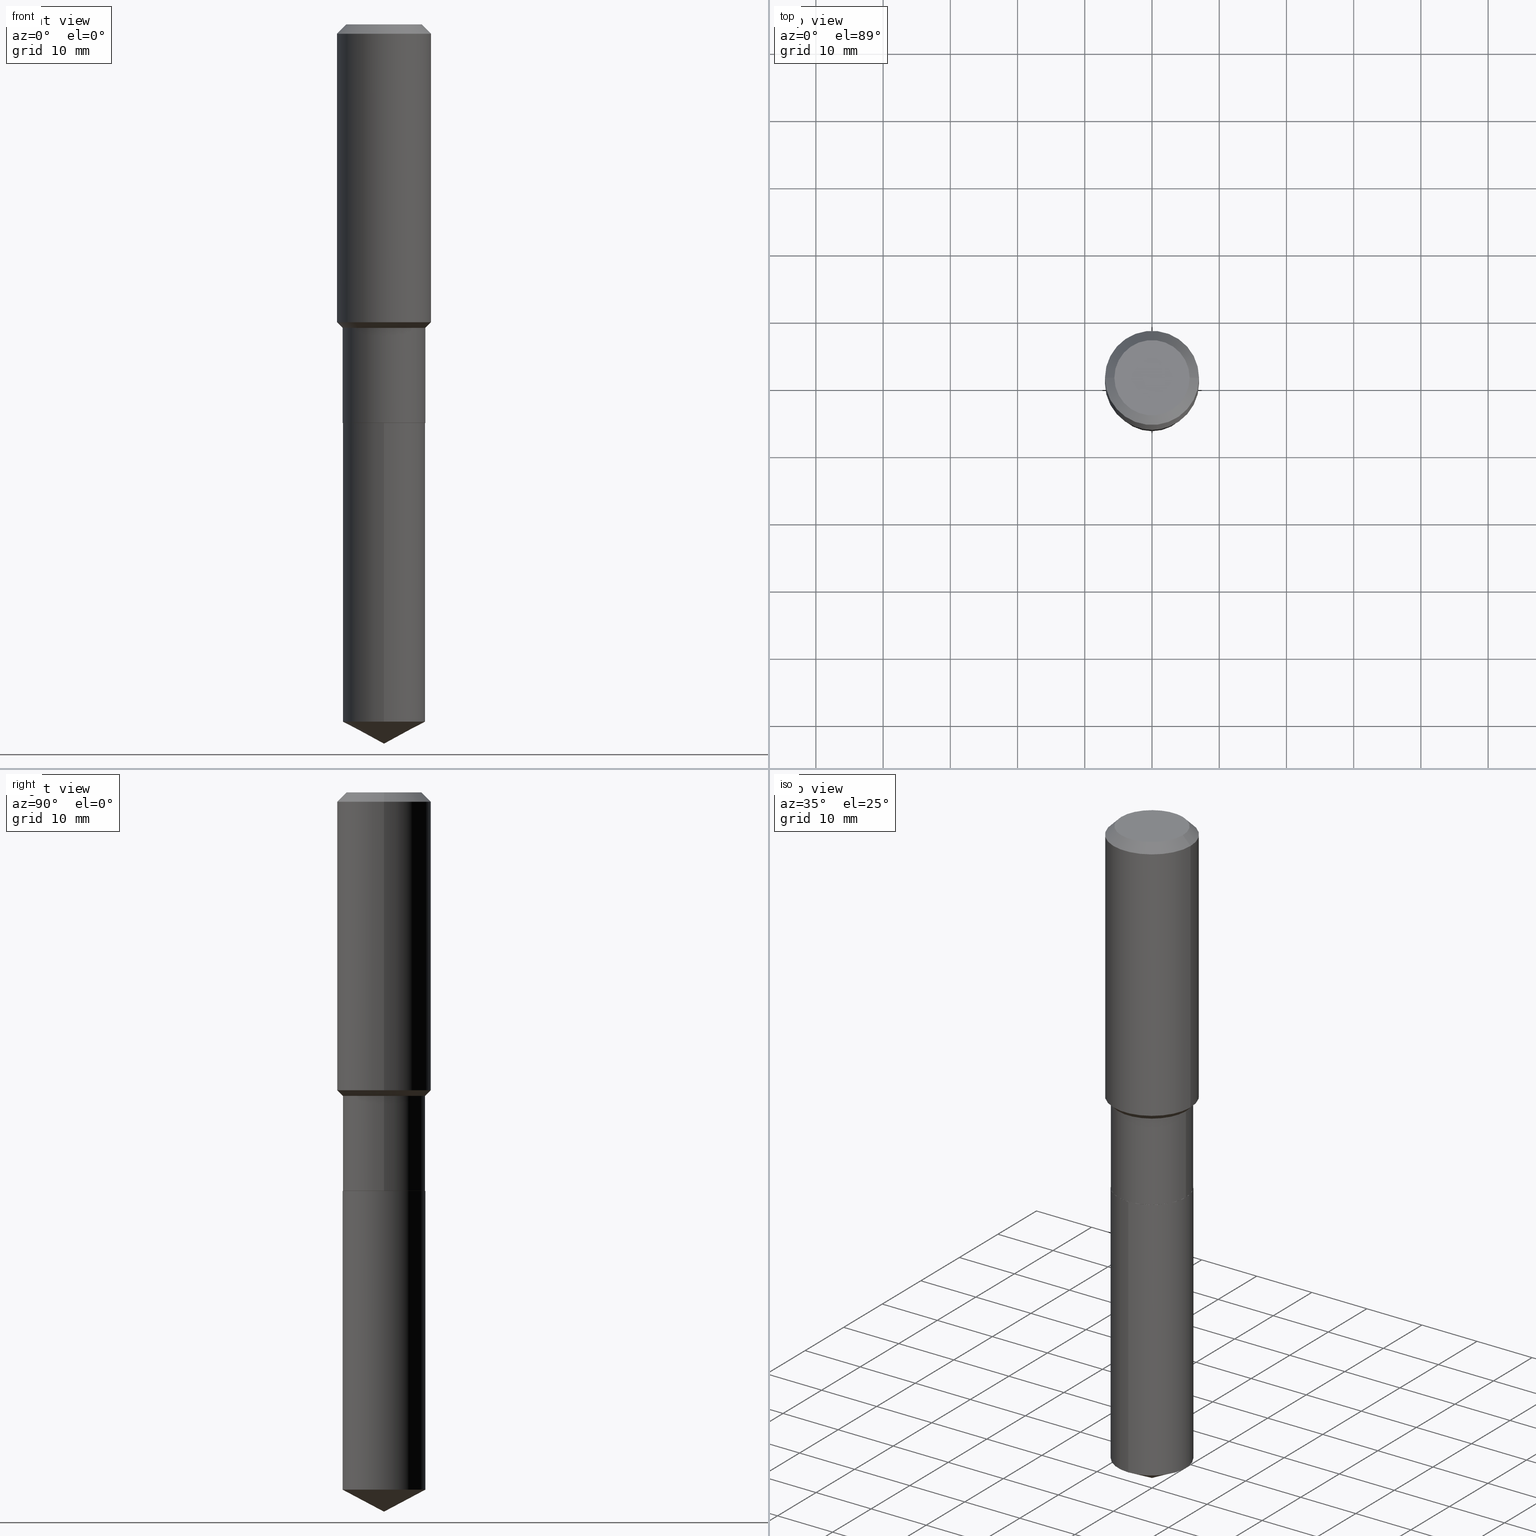
[diagram: canonical four-view strip — front | top / right | iso, engineering-drawing reading convention]
A machine part, canonical four-view strip (front | top / right | iso — engineering-drawing reading convention). The complete STEP part file that produces these views, byte-faithful:
ISO-10303-21;
HEADER;
FILE_DESCRIPTION (( 'STEP AP203' ),
    '1' );
FILE_NAME ('54727.STEP',
    '2024-04-24T15:38:02',
    ( '' ),
    ( '' ),
    'SwSTEP 2.0',
    'SolidWorks 2023',
    '' );
FILE_SCHEMA (( 'CONFIG_CONTROL_DESIGN' ));
ENDSEC;

DATA;
#1 = CARTESIAN_POINT ( 'NONE',  ( -1.691273560535556602E-15, -0.2422000000000081865, -2.334799999999999542 ) ) ;
#2 = EDGE_CURVE ( 'NONE', #485, #347, #308, .T. ) ;
#3 = DIRECTION ( 'NONE',  ( 1.000000000000000000, -6.982962677686269077E-15, 0.000000000000000000 ) ) ;
#4 = EDGE_LOOP ( 'NONE', ( #404, #425, #243, #324 ) ) ;
#5 = ORIENTED_EDGE ( 'NONE', *, *, #314, .F. ) ;
#6 = DIRECTION ( 'NONE',  ( 1.000000000000000000, -6.982962677686265922E-15, 0.000000000000000000 ) ) ;
#7 = CARTESIAN_POINT ( 'NONE',  ( 5.709680568681056788E-29, -8.151910629930976498E-15, -2.334799999999999986 ) ) ;
#8 = ADVANCED_FACE ( 'NONE', ( #30 ), #33, .T. ) ;
#9 = DIRECTION ( 'NONE',  ( 6.273719981627759766E-15, 0.8829475928589287648, 0.4694715627858873086 ) ) ;
#10 = CARTESIAN_POINT ( 'NONE',  ( 4.265631238628734583E-29, -6.090190899344100319E-15, -1.744300000000000406 ) ) ;
#11 = CARTESIAN_POINT ( 'NONE',  ( 0.000000000000000000, 0.000000000000000000, 0.000000000000000000 ) ) ;
#12 = AXIS2_PLACEMENT_3D ( 'NONE', #303, #271, #427 ) ;
#13 = FACE_OUTER_BOUND ( 'NONE', #249, .T. ) ;
#14 = COORDINATED_UNIVERSAL_TIME_OFFSET ( 5, 0, .BEHIND. ) ;
#15 = CARTESIAN_POINT ( 'NONE',  ( 1.347942405969256063E-30, -1.924504513970354330E-16, -0.05512000000000035621 ) ) ;
#16 = UNCERTAINTY_MEASURE_WITH_UNIT (LENGTH_MEASURE( 1.000000000000000082E-05 ), #152, 'distance_accuracy_value', 'NONE');
#17 = AXIS2_PLACEMENT_3D ( 'NONE', #297, #461, #235 ) ;
#18 = EDGE_CURVE ( 'NONE', #147, #366, #406, .T. ) ;
#19 = DIRECTION ( 'NONE',  ( 1.000000000000000000, 0.000000000000000000, 0.000000000000000000 ) ) ;
#20 = CARTESIAN_POINT ( 'NONE',  ( 5.709680568681056788E-29, -8.151910629930976498E-15, -2.334799999999999986 ) ) ;
#21 = ORIENTED_EDGE ( 'NONE', *, *, #462, .F. ) ;
#22 = PERSON_AND_ORGANIZATION_ROLE ( 'creator' ) ;
#23 = VERTEX_POINT ( 'NONE', #334 ) ;
#24 = CARTESIAN_POINT ( 'NONE',  ( -0.2756000000000001227, 1.958255779754836984E-15, -1.355658510874252567E-29 ) ) ;
#25 = CARTESIAN_POINT ( 'NONE',  ( 0.2421999999999999431, -7.898079936597074890E-15, -1.777700000000000502 ) ) ;
#26 = AXIS2_PLACEMENT_3D ( 'NONE', #466, #124, #273 ) ;
#27 = AXIS2_PLACEMENT_3D ( 'NONE', #349, #225, #464 ) ;
#28 = DIRECTION ( 'NONE',  ( -1.000000000000000000, 6.982962677686269077E-15, 0.000000000000000000 ) ) ;
#29 = APPROVAL ( #436, 'UNSPECIFIED' ) ;
#30 = FACE_OUTER_BOUND ( 'NONE', #91, .T. ) ;
#31 = DIRECTION ( 'NONE',  ( -2.445495124633309796E-29, 3.491443649327408440E-15, 1.000000000000000000 ) ) ;
#32 =( GEOMETRIC_REPRESENTATION_CONTEXT ( 3 ) GLOBAL_UNCERTAINTY_ASSIGNED_CONTEXT ( ( #16 ) ) GLOBAL_UNIT_ASSIGNED_CONTEXT ( ( #152, #335, #42 ) ) REPRESENTATION_CONTEXT ( 'NONE', 'WORKASPACE' ) );
#33 = CYLINDRICAL_SURFACE ( 'NONE', #318, 0.2422000000000000264 ) ;
#34 = EDGE_CURVE ( 'NONE', #94, #132, #144, .T. ) ;
#35 = ORIENTED_EDGE ( 'NONE', *, *, #321, .F. ) ;
#36 = DIRECTION ( 'NONE',  ( -2.445495124633309796E-29, 3.491443649327408440E-15, 1.000000000000000000 ) ) ;
#37 = CC_DESIGN_APPROVAL ( #29, ( #450 ) ) ;
#38 = DIRECTION ( 'NONE',  ( -6.982962677686265133E-15, -1.000000000000000000, 3.541896320645575857E-15 ) ) ;
#39 = ORIENTED_EDGE ( 'NONE', *, *, #415, .F. ) ;
#40 = CARTESIAN_POINT ( 'NONE',  ( 1.030189383968862235E-28, -1.470805551715664024E-14, -4.212600000000000122 ) ) ;
#41 = FACE_OUTER_BOUND ( 'NONE', #219, .T. ) ;
#42 =( NAMED_UNIT ( * ) SI_UNIT ( $, .STERADIAN. ) SOLID_ANGLE_UNIT ( ) );
#43 = ORIENTED_EDGE ( 'NONE', *, *, #210, .T. ) ;
#44 = DIRECTION ( 'NONE',  ( -2.445468806185136597E-29, 3.491481338843145583E-15, 1.000000000000000000 ) ) ;
#45 = APPROVAL_PERSON_ORGANIZATION ( #164, #108, #135 ) ;
#46 = PERSON_AND_ORGANIZATION ( #194, #140 ) ;
#47 = DIRECTION ( 'NONE',  ( -2.438088387897960049E-29, 3.491481338843145188E-15, 1.000000000000000000 ) ) ;
#48 = EDGE_LOOP ( 'NONE', ( #408, #264, #460, #250 ) ) ;
#49 = APPROVAL_DATE_TIME ( #400, #29 ) ;
#50 = CC_DESIGN_PERSON_AND_ORGANIZATION_ASSIGNMENT ( #208, #313, ( #416 ) ) ;
#51 = ORIENTED_EDGE ( 'NONE', *, *, #402, .F. ) ;
#52 = ORIENTED_EDGE ( 'NONE', *, *, #386, .F. ) ;
#53 = VECTOR ( 'NONE', #67, 39.37007874015748854 ) ;
#54 = APPROVAL_ROLE ( '' ) ;
#55 = VECTOR ( 'NONE', #133, 39.37007874015748854 ) ;
#56 = VERTEX_POINT ( 'NONE', #100 ) ;
#57 = ORIENTED_EDGE ( 'NONE', *, *, #422, .F. ) ;
#58 = DATE_AND_TIME ( #365, #80 ) ;
#59 = EDGE_LOOP ( 'NONE', ( #179, #212 ) ) ;
#60 = DIRECTION ( 'NONE',  ( 2.445468806185136597E-29, -3.491481338843145583E-15, -1.000000000000000000 ) ) ;
#61 = CARTESIAN_POINT ( 'NONE',  ( -9.439721640706190018E-47, 1.347742071746724849E-32, 3.860086710912454339E-18 ) ) ;
#62 = ADVANCED_FACE ( 'NONE', ( #486 ), #426, .T. ) ;
#63 = AXIS2_PLACEMENT_3D ( 'NONE', #214, #338, #28 ) ;
#64 = VECTOR ( 'NONE', #390, 39.37007874015748143 ) ;
#65 = CC_DESIGN_PERSON_AND_ORGANIZATION_ASSIGNMENT ( #131, #22, ( #181 ) ) ;
#66 = ORIENTED_EDGE ( 'NONE', *, *, #321, .T. ) ;
#67 = DIRECTION ( 'NONE',  ( 0.7071067811865474617, -2.468850131082256666E-15, 0.7071067811865474617 ) ) ;
#68 = FACE_OUTER_BOUND ( 'NONE', #73, .T. ) ;
#69 = VECTOR ( 'NONE', #178, 39.37007874015748143 ) ;
#70 = AXIS2_PLACEMENT_3D ( 'NONE', #206, #467, #312 ) ;
#71 = CC_DESIGN_PERSON_AND_ORGANIZATION_ASSIGNMENT ( #200, #357, ( #450 ) ) ;
#72 = CARTESIAN_POINT ( 'NONE',  ( 0.2421999999999999709, -1.691273560535613794E-15, 1.181010015097775552E-29 ) ) ;
#73 = EDGE_LOOP ( 'NONE', ( #255, #174, #241, #130 ) ) ;
#74 = FACE_OUTER_BOUND ( 'NONE', #315, .T. ) ;
#75 = CARTESIAN_POINT ( 'NONE',  ( 9.986900392023290788E-29, -1.425851531646649919E-14, -4.083819975651589829 ) ) ;
#76 = FACE_OUTER_BOUND ( 'NONE', #288, .T. ) ;
#77 = ADVANCED_FACE ( 'NONE', ( #68 ), #185, .T. ) ;
#78 = CLOSED_SHELL ( 'NONE', ( #8, #157, #224, #85, #478 ) ) ;
#79 = AXIS2_PLACEMENT_3D ( 'NONE', #122, #230, #236 ) ;
#80 = LOCAL_TIME ( 11, 38, 2.000000000000000000, #276 ) ;
#81 = EDGE_CURVE ( 'NONE', #132, #56, #260, .T. ) ;
#82 = DIRECTION ( 'NONE',  ( 0.7071067811865453523, -7.319954787623248157E-15, -0.7071067811865496822 ) ) ;
#83 = CARTESIAN_POINT ( 'NONE',  ( -9.439721640706190018E-47, 1.347742071746724849E-32, 3.860086710912454339E-18 ) ) ;
#84 = LINE ( 'NONE', #40, #341 ) ;
#85 = ADVANCED_FACE ( 'NONE', ( #149 ), #103, .T. ) ;
#86 = CONICAL_SURFACE ( 'NONE', #370, 74.04434902938322693, 1.082104136236484715 ) ;
#87 = CIRCLE ( 'NONE', #191, 0.2422000000000000264 ) ;
#88 = ORIENTED_EDGE ( 'NONE', *, *, #393, .F. ) ;
#89 = APPROVAL_ROLE ( '' ) ;
#90 = DIRECTION ( 'NONE',  ( -2.445468806185136597E-29, 3.491481338843145583E-15, 1.000000000000000000 ) ) ;
#91 = EDGE_LOOP ( 'NONE', ( #326, #375, #411, #35 ) ) ;
#92 = ORIENTED_EDGE ( 'NONE', *, *, #210, .F. ) ;
#93 = CARTESIAN_POINT ( 'NONE',  ( -0.2756000000000000116, -1.183064895615730633E-15, -0.05512000000000035621 ) ) ;
#94 = VERTEX_POINT ( 'NONE', #25 ) ;
#95 = DIRECTION ( 'NONE',  ( 0.000000000000000000, 0.000000000000000000, 1.000000000000000000 ) ) ;
#96 = EDGE_LOOP ( 'NONE', ( #246, #253, #66, #320 ) ) ;
#97 = APPROVAL_DATE_TIME ( #367, #108 ) ;
#98 = VECTOR ( 'NONE', #223, 39.37007874015748143 ) ;
#99 = DIRECTION ( 'NONE',  ( -6.982962677686265922E-15, -1.000000000000000000, 3.383791899666717075E-15 ) ) ;
#100 = CARTESIAN_POINT ( 'NONE',  ( 0.2756000000000000116, -2.116954965367370658E-15, -0.05512000000000035621 ) ) ;
#101 = CARTESIAN_POINT ( 'NONE',  ( 0.2417000000000000259, -9.839692709127749257E-15, -2.334800000000000431 ) ) ;
#102 = ADVANCED_FACE ( 'NONE', ( #330 ), #484, .T. ) ;
#103 = CYLINDRICAL_SURFACE ( 'NONE', #340, 0.2422000000000000264 ) ;
#104 = ADVANCED_FACE ( 'NONE', ( #305 ), #417, .T. ) ;
#105 = CONICAL_SURFACE ( 'NONE', #240, 0.2421999999999999431, 0.7853981633974482790 ) ;
#106 = CARTESIAN_POINT ( 'NONE',  ( 1.347942405969256063E-30, -1.924504513970354330E-16, -0.05512000000000035621 ) ) ;
#107 = DIRECTION ( 'NONE',  ( -2.445495124633309796E-29, 3.491443649327408440E-15, 1.000000000000000000 ) ) ;
#108 = APPROVAL ( #175, 'UNSPECIFIED' ) ;
#109 = PLANE ( 'NONE',  #186 ) ;
#110 = VECTOR ( 'NONE', #327, 39.37007874015748143 ) ;
#111 = VERTEX_POINT ( 'NONE', #430 ) ;
#112 = CARTESIAN_POINT ( 'NONE',  ( -8.597750430176716046E-28, 1.227502678762048626E-13, 35.15747874015747954 ) ) ;
#113 = APPROVAL_PERSON_ORGANIZATION ( #359, #29, #89 ) ;
#114 = CARTESIAN_POINT ( 'NONE',  ( -0.2421999999999999709, 1.720934506010962443E-15, -1.191366078859738065E-29 ) ) ;
#115 = CARTESIAN_POINT ( 'NONE',  ( 1.720934506011062431E-15, 0.2421999999999857323, -4.083819975651591605 ) ) ;
#116 = EDGE_LOOP ( 'NONE', ( #204, #420, #205 ) ) ;
#117 = EDGE_CURVE ( 'NONE', #366, #56, #351, .T. ) ;
#118 = APPLICATION_CONTEXT ( 'configuration controlled 3d designs of mechanical parts and assemblies' ) ;
#119 = FACE_OUTER_BOUND ( 'NONE', #445, .T. ) ;
#120 = CARTESIAN_POINT ( 'NONE',  ( 0.000000000000000000, 0.000000000000000000, 0.000000000000000000 ) ) ;
#121 = CIRCLE ( 'NONE', #298, 0.2417000000000000259 ) ;
#122 = CARTESIAN_POINT ( 'NONE',  ( 0.000000000000000000, 0.000000000000000000, 0.000000000000000000 ) ) ;
#123 = EDGE_CURVE ( 'NONE', #137, #439, #413, .T. ) ;
#124 = DIRECTION ( 'NONE',  ( 2.438088387897960049E-29, -3.491481338843145188E-15, -1.000000000000000000 ) ) ;
#125 = DIRECTION ( 'NONE',  ( -2.445468806185136597E-29, 3.491481338843145583E-15, 1.000000000000000000 ) ) ;
#126 = CC_DESIGN_PERSON_AND_ORGANIZATION_ASSIGNMENT ( #139, #287, ( #181 ) ) ;
#127 = CARTESIAN_POINT ( 'NONE',  ( 4.265631238628734583E-29, -6.090190899344100319E-15, -1.744300000000000406 ) ) ;
#128 = DATE_TIME_ROLE ( 'classification_date' ) ;
#129 = DIRECTION ( 'NONE',  ( 1.000000000000000000, -6.982962677686266711E-15, 4.876132675269083677E-29 ) ) ;
#130 = ORIENTED_EDGE ( 'NONE', *, *, #393, .T. ) ;
#131 = PERSON_AND_ORGANIZATION ( #194, #140 ) ;
#132 = VERTEX_POINT ( 'NONE', #421 ) ;
#133 = DIRECTION ( 'NONE',  ( -0.7071067811865474617, 7.493145998870352582E-15, 0.7071067811865474617 ) ) ;
#134 = DIRECTION ( 'NONE',  ( -2.445468806185136597E-29, 3.491481338843145583E-15, 1.000000000000000000 ) ) ;
#135 = APPROVAL_ROLE ( '' ) ;
#136 = ORIENTED_EDGE ( 'NONE', *, *, #218, .T. ) ;
#137 = VERTEX_POINT ( 'NONE', #115 ) ;
#138 = AXIS2_PLACEMENT_3D ( 'NONE', #10, #160, #3 ) ;
#139 = PERSON_AND_ORGANIZATION ( #194, #140 ) ;
#140 = ORGANIZATION ( 'UNSPECIFIED', 'UNSPECIFIED', '' ) ;
#141 = EDGE_CURVE ( 'NONE', #147, #222, #343, .T. ) ;
#142 = EDGE_LOOP ( 'NONE', ( #481, #173 ) ) ;
#143 = ADVANCED_FACE ( 'NONE', ( #74 ), #187, .T. ) ;
#144 = LINE ( 'NONE', #291, #53 ) ;
#145 = CARTESIAN_POINT ( 'NONE',  ( 4.347309896755318363E-29, -6.206806376061462280E-15, -1.777700000000000502 ) ) ;
#146 = APPLICATION_CONTEXT ( 'configuration controlled 3d designs of mechanical parts and assemblies' ) ;
#147 = VERTEX_POINT ( 'NONE', #296 ) ;
#148 = AXIS2_PLACEMENT_3D ( 'NONE', #433, #153, #455 ) ;
#149 = FACE_OUTER_BOUND ( 'NONE', #96, .T. ) ;
#150 = DIRECTION ( 'NONE',  ( -2.445468806185136597E-29, 3.491481338843145583E-15, 1.000000000000000000 ) ) ;
#151 = LINE ( 'NONE', #451, #98 ) ;
#152 =( CONVERSION_BASED_UNIT ( 'INCH', #354 ) LENGTH_UNIT ( ) NAMED_UNIT ( #459 ) );
#153 = DIRECTION ( 'NONE',  ( -2.445495124633309796E-29, 3.491443649327408440E-15, 1.000000000000000000 ) ) ;
#154 = CARTESIAN_POINT ( 'NONE',  ( 1.720934506011019438E-15, 0.2421999999999918662, -2.334800000000000875 ) ) ;
#155 = CIRCLE ( 'NONE', #295, 0.2422000000000000264 ) ;
#156 = ORIENTED_EDGE ( 'NONE', *, *, #123, .F. ) ;
#157 = ADVANCED_FACE ( 'NONE', ( #189 ), #86, .T. ) ;
#158 = DIRECTION ( 'NONE',  ( -6.982962677686265922E-15, -1.000000000000000000, 3.383791899666717075E-15 ) ) ;
#159 = DIRECTION ( 'NONE',  ( -2.445495124633309796E-29, 3.491443649327408440E-15, 1.000000000000000000 ) ) ;
#160 = DIRECTION ( 'NONE',  ( -2.445468806185136597E-29, 3.491481338843145583E-15, 1.000000000000000000 ) ) ;
#161 = DIRECTION ( 'NONE',  ( -2.445468806185136597E-29, 3.491481338843145583E-15, 1.000000000000000000 ) ) ;
#162 = AXIS2_PLACEMENT_3D ( 'NONE', #83, #44, #129 ) ;
#163 = CARTESIAN_POINT ( 'NONE',  ( 4.347309896755318363E-29, -6.206806376061462280E-15, -1.777700000000000502 ) ) ;
#164 = PERSON_AND_ORGANIZATION ( #194, #140 ) ;
#165 = CARTESIAN_POINT ( 'NONE',  ( 5.709680568681057909E-29, -8.151910629930978075E-15, -2.334800000000000431 ) ) ;
#166 = ORIENTED_EDGE ( 'NONE', *, *, #262, .F. ) ;
#167 = ORIENTED_EDGE ( 'NONE', *, *, #34, .F. ) ;
#168 = VECTOR ( 'NONE', #289, 39.37007874015748854 ) ;
#169 = CC_DESIGN_APPROVAL ( #108, ( #457 ) ) ;
#170 = PERSON_AND_ORGANIZATION_ROLE ( 'creator' ) ;
#171 = ORIENTED_EDGE ( 'NONE', *, *, #183, .T. ) ;
#172 = EDGE_LOOP ( 'NONE', ( #39, #475, #156 ) ) ;
#173 = ORIENTED_EDGE ( 'NONE', *, *, #259, .T. ) ;
#174 = ORIENTED_EDGE ( 'NONE', *, *, #18, .F. ) ;
#175 = APPROVAL_STATUS ( 'not_yet_approved' ) ;
#176 = ADVANCED_FACE ( 'NONE', ( #474 ), #201, .F. ) ;
#177 = ORIENTED_EDGE ( 'NONE', *, *, #81, .T. ) ;
#178 = DIRECTION ( 'NONE',  ( -2.445468806185136877E-29, 3.491481338843145188E-15, 1.000000000000000000 ) ) ;
#179 = ORIENTED_EDGE ( 'NONE', *, *, #412, .T. ) ;
#180 = CONICAL_SURFACE ( 'NONE', #490, 0.2421999999999999431, 0.7853981633974482790 ) ;
#181 = PRODUCT_DEFINITION_FORMATION_WITH_SPECIFIED_SOURCE ( 'ANY', '', #416, .NOT_KNOWN. ) ;
#182 = EDGE_CURVE ( 'NONE', #56, #222, #232, .T. ) ;
#183 = EDGE_CURVE ( 'NONE', #360, #94, #348, .T. ) ;
#184 = DIRECTION ( 'NONE',  ( -1.000000000000000000, 6.982962677686269077E-15, 0.000000000000000000 ) ) ;
#185 = CONICAL_SURFACE ( 'NONE', #63, 0.2756000000000000116, 0.7853981633974452814 ) ;
#186 = AXIS2_PLACEMENT_3D ( 'NONE', #7, #346, #198 ) ;
#187 = CYLINDRICAL_SURFACE ( 'NONE', #239, 0.2421999999999999709 ) ;
#188 = DIRECTION ( 'NONE',  ( -2.445495124633309796E-29, 3.491443649327408440E-15, 1.000000000000000000 ) ) ;
#189 = FACE_OUTER_BOUND ( 'NONE', #116, .T. ) ;
#190 = CARTESIAN_POINT ( 'NONE',  ( -0.2421999999999999431, -5.457551126650547377E-15, -1.777700000000000502 ) ) ;
#191 = AXIS2_PLACEMENT_3D ( 'NONE', #247, #125, #274 ) ;
#192 = VERTEX_POINT ( 'NONE', #423 ) ;
#193 = LINE ( 'NONE', #114, #64 ) ;
#194 = PERSON ( 'UNSPECIFIED', 'UNSPECIFIED', 'UNSPECIFIED', ('UNSPECIFIED'), ('UNSPECIFIED'), ('UNSPECIFIED') ) ;
#195 = DIRECTION ( 'NONE',  ( 1.000000000000000000, -6.982962677686267499E-15, 0.000000000000000000 ) ) ;
#196 = DIRECTION ( 'NONE',  ( -2.445468806185136877E-29, 3.491481338843145188E-15, 1.000000000000000000 ) ) ;
#197 = CYLINDRICAL_SURFACE ( 'NONE', #355, 0.2421999999999999709 ) ;
#198 = DIRECTION ( 'NONE',  ( 6.982962677686265922E-15, 1.000000000000000000, -3.491443649327408440E-15 ) ) ;
#199 = VECTOR ( 'NONE', #221, 39.37007874015748143 ) ;
#200 = PERSON_AND_ORGANIZATION ( #194, #140 ) ;
#201 = PLANE ( 'NONE',  #26 ) ;
#202 = ORIENTED_EDGE ( 'NONE', *, *, #402, .T. ) ;
#203 = SHAPE_DEFINITION_REPRESENTATION ( #447, #217 ) ;
#204 = ORIENTED_EDGE ( 'NONE', *, *, #292, .F. ) ;
#205 = ORIENTED_EDGE ( 'NONE', *, *, #342, .F. ) ;
#206 = CARTESIAN_POINT ( 'NONE',  ( -8.597750430176716046E-28, 1.227502678762048626E-13, 35.15747874015747954 ) ) ;
#207 = CONICAL_SURFACE ( 'NONE', #70, 74.04434902938322693, 1.082104136236484715 ) ;
#208 = PERSON_AND_ORGANIZATION ( #194, #140 ) ;
#209 = ORIENTED_EDGE ( 'NONE', *, *, #244, .T. ) ;
#210 = EDGE_CURVE ( 'NONE', #192, #23, #257, .T. ) ;
#211 = ORIENTED_EDGE ( 'NONE', *, *, #244, .F. ) ;
#212 = ORIENTED_EDGE ( 'NONE', *, *, #2, .T. ) ;
#213 = EDGE_CURVE ( 'NONE', #192, #111, #151, .T. ) ;
#214 = CARTESIAN_POINT ( 'NONE',  ( 1.347942405969256063E-30, -1.924504513970354330E-16, -0.05512000000000035621 ) ) ;
#215 = VECTOR ( 'NONE', #371, 39.37007874015748143 ) ;
#216 = DIRECTION ( 'NONE',  ( 1.000000000000000000, -6.982962677686269077E-15, 0.000000000000000000 ) ) ;
#217 = ADVANCED_BREP_SHAPE_REPRESENTATION ( '54727', ( #392, #398, #418 ), #32 ) ;
#218 = EDGE_CURVE ( 'NONE', #377, #438, #229, .T. ) ;
#219 = EDGE_LOOP ( 'NONE', ( #479, #399, #211, #441 ) ) ;
#220 = AXIS2_PLACEMENT_3D ( 'NONE', #431, #159, #158 ) ;
#221 = DIRECTION ( 'NONE',  ( -0.7071067811865453523, 2.468850131082234184E-15, -0.7071067811865496822 ) ) ;
#222 = VERTEX_POINT ( 'NONE', #93 ) ;
#223 = DIRECTION ( 'NONE',  ( -0.7071067811864267805, 7.493145998869918709E-15, 0.7071067811866682540 ) ) ;
#224 = ADVANCED_FACE ( 'NONE', ( #476 ), #207, .T. ) ;
#225 = DIRECTION ( 'NONE',  ( -2.445468806185136597E-29, 3.491481338843145583E-15, 1.000000000000000000 ) ) ;
#226 = CARTESIAN_POINT ( 'NONE',  ( 1.347942405969256063E-30, -1.924504513970354330E-16, -0.05512000000000035621 ) ) ;
#227 = ADVANCED_FACE ( 'NONE', ( #13 ), #180, .T. ) ;
#228 = DIRECTION ( 'NONE',  ( -2.445468806185136597E-29, 3.491481338843145583E-15, 1.000000000000000000 ) ) ;
#229 = LINE ( 'NONE', #302, #55 ) ;
#230 = DIRECTION ( 'NONE',  ( -2.445468806185136597E-29, 3.491481338843145583E-15, 1.000000000000000000 ) ) ;
#231 = VECTOR ( 'NONE', #82, 39.37007874015748143 ) ;
#232 = CIRCLE ( 'NONE', #380, 0.2756000000000000116 ) ;
#233 = CC_DESIGN_SECURITY_CLASSIFICATION ( #450, ( #181 ) ) ;
#234 = DIRECTION ( 'NONE',  ( 1.000000000000000000, -6.982962677686265922E-15, 0.000000000000000000 ) ) ;
#235 = DIRECTION ( 'NONE',  ( 1.000000000000000000, -6.982962677686268288E-15, 0.000000000000000000 ) ) ;
#236 = DIRECTION ( 'NONE',  ( 1.000000000000000000, -6.982962677686267499E-15, 4.876176775795935793E-29 ) ) ;
#237 = CARTESIAN_POINT ( 'NONE',  ( -0.2756000000000001782, -4.131935119589262941E-15, -1.744300000000000406 ) ) ;
#238 = SECURITY_CLASSIFICATION_LEVEL ( 'unclassified' ) ;
#239 = AXIS2_PLACEMENT_3D ( 'NONE', #456, #345, #267 ) ;
#240 = AXIS2_PLACEMENT_3D ( 'NONE', #145, #444, #293 ) ;
#241 = ORIENTED_EDGE ( 'NONE', *, *, #141, .T. ) ;
#242 = LOCAL_TIME ( 11, 38, 2.000000000000000000, #361 ) ;
#243 = ORIENTED_EDGE ( 'NONE', *, *, #34, .T. ) ;
#244 = EDGE_CURVE ( 'NONE', #360, #111, #87, .T. ) ;
#245 = CALENDAR_DATE ( 2024, 24, 4 ) ;
#246 = ORIENTED_EDGE ( 'NONE', *, *, #488, .F. ) ;
#247 = CARTESIAN_POINT ( 'NONE',  ( 5.708457834277965108E-29, -8.150164889261555783E-15, -2.334300000000000264 ) ) ;
#248 = DIRECTION ( 'NONE',  ( 1.000000000000000000, -6.982962677686265922E-15, 4.876176775795935793E-29 ) ) ;
#249 = EDGE_LOOP ( 'NONE', ( #471, #136, #21, #167 ) ) ;
#250 = ORIENTED_EDGE ( 'NONE', *, *, #81, .F. ) ;
#251 = COORDINATED_UNIVERSAL_TIME_OFFSET ( 5, 0, .BEHIND. ) ;
#252 = CIRCLE ( 'NONE', #12, 0.2421999999999999431 ) ;
#253 = ORIENTED_EDGE ( 'NONE', *, *, #123, .T. ) ;
#254 = LINE ( 'NONE', #101, #110 ) ;
#255 = ORIENTED_EDGE ( 'NONE', *, *, #117, .F. ) ;
#256 = AXIS2_PLACEMENT_3D ( 'NONE', #270, #463, #195 ) ;
#257 = CIRCLE ( 'NONE', #27, 0.2417000000000000259 ) ;
#258 = LOCAL_TIME ( 11, 38, 2.000000000000000000, #14 ) ;
#259 = EDGE_CURVE ( 'NONE', #366, #147, #363, .T. ) ;
#260 = LINE ( 'NONE', #290, #69 ) ;
#261 = DIRECTION ( 'NONE',  ( -6.982962677686265922E-15, -1.000000000000000000, 4.511722532888956363E-15 ) ) ;
#262 = EDGE_CURVE ( 'NONE', #23, #192, #121, .T. ) ;
#263 = CONICAL_SURFACE ( 'NONE', #389, 0.2417000000000000259, 0.7853981633972775267 ) ;
#264 = ORIENTED_EDGE ( 'NONE', *, *, #314, .T. ) ;
#265 = PRODUCT_RELATED_PRODUCT_CATEGORY ( 'detail', '', ( #416 ) ) ;
#266 = DIRECTION ( 'NONE',  ( -2.445468806185136597E-29, 3.491481338843145583E-15, 1.000000000000000000 ) ) ;
#267 = DIRECTION ( 'NONE',  ( 1.000000000000000000, -6.982962677686267499E-15, 4.876176775795935793E-29 ) ) ;
#268 = ORIENTED_EDGE ( 'NONE', *, *, #117, .T. ) ;
#269 = EDGE_CURVE ( 'NONE', #438, #132, #454, .T. ) ;
#270 = CARTESIAN_POINT ( 'NONE',  ( 5.709680568681057909E-29, -8.151910629930978075E-15, -2.334800000000000431 ) ) ;
#271 = DIRECTION ( 'NONE',  ( -2.445468806185136597E-29, 3.491481338843145583E-15, 1.000000000000000000 ) ) ;
#272 = DIRECTION ( 'NONE',  ( 1.000000000000000000, -6.982962677686265922E-15, 0.000000000000000000 ) ) ;
#273 = DIRECTION ( 'NONE',  ( -1.000000000000000000, 6.982962677686265922E-15, -4.876176775795935793E-29 ) ) ;
#274 = DIRECTION ( 'NONE',  ( 1.000000000000000000, -6.982962677686265922E-15, 0.000000000000000000 ) ) ;
#275 = EDGE_CURVE ( 'NONE', #23, #360, #254, .T. ) ;
#276 = COORDINATED_UNIVERSAL_TIME_OFFSET ( 5, 0, .BEHIND. ) ;
#277 = CIRCLE ( 'NONE', #148, 0.2422000000000000264 ) ;
#278 = ORIENTED_EDGE ( 'NONE', *, *, #141, .F. ) ;
#279 = CALENDAR_DATE ( 2024, 24, 4 ) ;
#280 = ORIENTED_EDGE ( 'NONE', *, *, #259, .F. ) ;
#281 = COORDINATED_UNIVERSAL_TIME_OFFSET ( 5, 0, .BEHIND. ) ;
#282 = EDGE_LOOP ( 'NONE', ( #368, #43, #332, #51 ) ) ;
#283 = CALENDAR_DATE ( 2024, 24, 4 ) ;
#284 = ADVANCED_FACE ( 'NONE', ( #374 ), #105, .T. ) ;
#285 = AXIS2_PLACEMENT_3D ( 'NONE', #61, #150, #373 ) ;
#286 = ORIENTED_EDGE ( 'NONE', *, *, #183, .F. ) ;
#287 = PERSON_AND_ORGANIZATION_ROLE ( 'design_supplier' ) ;
#288 = EDGE_LOOP ( 'NONE', ( #209, #323, #403, #286 ) ) ;
#289 = DIRECTION ( 'NONE',  ( -6.165590087286828929E-15, -0.8829475928589255451, 0.4694715627858935258 ) ) ;
#290 = CARTESIAN_POINT ( 'NONE',  ( 0.2756000000000001227, -1.924504513970336137E-15, 1.343874319409360548E-29 ) ) ;
#291 = CARTESIAN_POINT ( 'NONE',  ( 0.2421999999999999431, -7.898079936597074890E-15, -1.777700000000000502 ) ) ;
#292 = EDGE_CURVE ( 'NONE', #435, #439, #337, .T. ) ;
#293 = DIRECTION ( 'NONE',  ( 1.000000000000000000, -6.982962677686268288E-15, 0.000000000000000000 ) ) ;
#294 = CLOSED_SHELL ( 'NONE', ( #470, #62, #102, #227, #325, #143, #284, #378, #77, #176, #429, #104 ) ) ;
#295 = AXIS2_PLACEMENT_3D ( 'NONE', #352, #385, #6 ) ;
#296 = CARTESIAN_POINT ( 'NONE',  ( -0.2204800000000000093, 1.635828836874783961E-15, 3.860086710901350968E-18 ) ) ;
#297 = CARTESIAN_POINT ( 'NONE',  ( 4.347309896755318363E-29, -6.206806376061462280E-15, -1.777700000000000502 ) ) ;
#298 = AXIS2_PLACEMENT_3D ( 'NONE', #165, #356, #468 ) ;
#299 =( LENGTH_UNIT ( ) NAMED_UNIT ( * ) SI_UNIT ( $, .METRE. ) );
#300 = APPROVAL_PERSON_ORGANIZATION ( #46, #483, #54 ) ;
#301 = CARTESIAN_POINT ( 'NONE',  ( 1.720934506011062629E-15, 0.2421999999999918940, -2.334800000000000875 ) ) ;
#302 = CARTESIAN_POINT ( 'NONE',  ( -0.2421999999999999431, -4.485871870050499836E-15, -1.777700000000000502 ) ) ;
#303 = CARTESIAN_POINT ( 'NONE',  ( 4.347309896755318363E-29, -6.206806376061462280E-15, -1.777700000000000502 ) ) ;
#304 = CARTESIAN_POINT ( 'NONE',  ( 5.709680568681057909E-29, -8.151910629930978075E-15, -2.334800000000000431 ) ) ;
#305 = FACE_OUTER_BOUND ( 'NONE', #282, .T. ) ;
#306 = FACE_OUTER_BOUND ( 'NONE', #364, .T. ) ;
#307 = DIRECTION ( 'NONE',  ( -2.445468806185136597E-29, 3.491481338843145583E-15, 1.000000000000000000 ) ) ;
#308 = CIRCLE ( 'NONE', #362, 0.2422000000000000264 ) ;
#309 = CIRCLE ( 'NONE', #17, 0.2421999999999999431 ) ;
#310 = DIRECTION ( 'NONE',  ( 1.000000000000000000, -6.982962677686268288E-15, 0.000000000000000000 ) ) ;
#311 = CARTESIAN_POINT ( 'NONE',  ( 0.2422000000000000264, -9.841438449797169972E-15, -2.334300000000000264 ) ) ;
#312 = DIRECTION ( 'NONE',  ( -6.982962677686265133E-15, -1.000000000000000000, 3.541896320645575857E-15 ) ) ;
#313 = PERSON_AND_ORGANIZATION_ROLE ( 'design_owner' ) ;
#314 = EDGE_CURVE ( 'NONE', #438, #222, #410, .T. ) ;
#315 = EDGE_LOOP ( 'NONE', ( #52, #202, #171, #57 ) ) ;
#316 = EDGE_LOOP ( 'NONE', ( #280, #268, #401, #278 ) ) ;
#317 = DESIGN_CONTEXT ( 'detailed design', #118, 'design' ) ;
#318 = AXIS2_PLACEMENT_3D ( 'NONE', #487, #107, #339 ) ;
#319 = VECTOR ( 'NONE', #196, 39.37007874015748143 ) ;
#320 = ORIENTED_EDGE ( 'NONE', *, *, #2, .F. ) ;
#321 = EDGE_CURVE ( 'NONE', #439, #347, #333, .T. ) ;
#322 = PERSON_AND_ORGANIZATION ( #194, #140 ) ;
#323 = ORIENTED_EDGE ( 'NONE', *, *, #386, .T. ) ;
#324 = ORIENTED_EDGE ( 'NONE', *, *, #269, .F. ) ;
#325 = ADVANCED_FACE ( 'NONE', ( #76 ), #197, .T. ) ;
#326 = ORIENTED_EDGE ( 'NONE', *, *, #342, .T. ) ;
#327 = DIRECTION ( 'NONE',  ( 0.7071067811864267805, -2.468850131080992517E-15, 0.7071067811866682540 ) ) ;
#328 = APPLICATION_PROTOCOL_DEFINITION ( 'international standard', 'config_control_design', 1994, #118 ) ;
#329 = AXIS2_PLACEMENT_3D ( 'NONE', #106, #60, #184 ) ;
#330 = FACE_OUTER_BOUND ( 'NONE', #48, .T. ) ;
#331 = LOCAL_TIME ( 11, 38, 2.000000000000000000, #251 ) ;
#332 = ORIENTED_EDGE ( 'NONE', *, *, #275, .T. ) ;
#333 = LINE ( 'NONE', #1, #473 ) ;
#334 = CARTESIAN_POINT ( 'NONE',  ( 0.2417000000000000259, -9.839692709127749257E-15, -2.334800000000000431 ) ) ;
#335 =( NAMED_UNIT ( * ) PLANE_ANGLE_UNIT ( ) SI_UNIT ( $, .RADIAN. ) );
#336 = CARTESIAN_POINT ( 'NONE',  ( 5.709680568681056788E-29, -8.151910629930976498E-15, -2.334799999999999986 ) ) ;
#337 = LINE ( 'NONE', #489, #168 ) ;
#338 = DIRECTION ( 'NONE',  ( 2.445468806185136597E-29, -3.491481338843145583E-15, -1.000000000000000000 ) ) ;
#339 = DIRECTION ( 'NONE',  ( -6.982962677686265922E-15, -1.000000000000000000, 3.383791899666717075E-15 ) ) ;
#340 = AXIS2_PLACEMENT_3D ( 'NONE', #20, #480, #99 ) ;
#341 = VECTOR ( 'NONE', #9, 39.37007874015748143 ) ;
#342 = EDGE_CURVE ( 'NONE', #439, #137, #277, .T. ) ;
#343 = LINE ( 'NONE', #381, #199 ) ;
#344 = DIRECTION ( 'NONE',  ( -2.445495124633309796E-29, 3.491443649327408440E-15, 1.000000000000000000 ) ) ;
#345 = DIRECTION ( 'NONE',  ( -2.445468806185136597E-29, 3.491481338843145583E-15, 1.000000000000000000 ) ) ;
#346 = DIRECTION ( 'NONE',  ( 2.445495124633309516E-29, -3.491443649327408440E-15, -1.000000000000000000 ) ) ;
#347 = VERTEX_POINT ( 'NONE', #388 ) ;
#348 = LINE ( 'NONE', #72, #319 ) ;
#349 = CARTESIAN_POINT ( 'NONE',  ( 5.709680568681057909E-29, -8.151910629930978075E-15, -2.334800000000000431 ) ) ;
#350 = CYLINDRICAL_SURFACE ( 'NONE', #79, 0.2756000000000001227 ) ;
#351 = LINE ( 'NONE', #453, #231 ) ;
#352 = CARTESIAN_POINT ( 'NONE',  ( 5.708457834277965108E-29, -8.150164889261555783E-15, -2.334300000000000264 ) ) ;
#353 = LINE ( 'NONE', #154, #465 ) ;
#354 = LENGTH_MEASURE_WITH_UNIT ( LENGTH_MEASURE( 0.02539999999999999897 ), #299 );
#355 = AXIS2_PLACEMENT_3D ( 'NONE', #11, #266, #458 ) ;
#356 = DIRECTION ( 'NONE',  ( -2.445468806185136597E-29, 3.491481338843145583E-15, 1.000000000000000000 ) ) ;
#357 = PERSON_AND_ORGANIZATION_ROLE ( 'classification_officer' ) ;
#358 = CC_DESIGN_DATE_AND_TIME_ASSIGNMENT ( #472, #405, ( #457 ) ) ;
#359 = PERSON_AND_ORGANIZATION ( #194, #140 ) ;
#360 = VERTEX_POINT ( 'NONE', #311 ) ;
#361 = COORDINATED_UNIVERSAL_TIME_OFFSET ( 5, 0, .BEHIND. ) ;
#362 = AXIS2_PLACEMENT_3D ( 'NONE', #336, #344, #382 ) ;
#363 = CIRCLE ( 'NONE', #162, 0.2204800000000000093 ) ;
#364 = EDGE_LOOP ( 'NONE', ( #166, #92 ) ) ;
#365 = CALENDAR_DATE ( 2024, 24, 4 ) ;
#366 = VERTEX_POINT ( 'NONE', #383 ) ;
#367 = DATE_AND_TIME ( #442, #331 ) ;
#368 = ORIENTED_EDGE ( 'NONE', *, *, #213, .F. ) ;
#369 = EDGE_CURVE ( 'NONE', #94, #377, #309, .T. ) ;
#370 = AXIS2_PLACEMENT_3D ( 'NONE', #112, #36, #38 ) ;
#371 = DIRECTION ( 'NONE',  ( -2.445468806185136877E-29, 3.491481338843145188E-15, 1.000000000000000000 ) ) ;
#372 = LOCAL_TIME ( 11, 38, 2.000000000000000000, #281 ) ;
#373 = DIRECTION ( 'NONE',  ( 1.000000000000000000, -6.982962677686266711E-15, 4.876132675269083677E-29 ) ) ;
#374 = FACE_OUTER_BOUND ( 'NONE', #4, .T. ) ;
#375 = ORIENTED_EDGE ( 'NONE', *, *, #488, .T. ) ;
#376 = ORIENTED_EDGE ( 'NONE', *, *, #269, .T. ) ;
#377 = VERTEX_POINT ( 'NONE', #190 ) ;
#378 = ADVANCED_FACE ( 'NONE', ( #119 ), #350, .T. ) ;
#379 = AXIS2_PLACEMENT_3D ( 'NONE', #75, #31, #261 ) ;
#380 = AXIS2_PLACEMENT_3D ( 'NONE', #15, #90, #234 ) ;
#381 = CARTESIAN_POINT ( 'NONE',  ( -0.2756000000000000116, 1.732054062573300039E-15, -0.05512000000000035621 ) ) ;
#382 = DIRECTION ( 'NONE',  ( -6.982962677686265922E-15, -1.000000000000000000, 3.383791899666717075E-15 ) ) ;
#383 = CARTESIAN_POINT ( 'NONE',  ( 0.2204800000000000093, -1.797903149065768707E-15, 3.860086710924123164E-18 ) ) ;
#384 = CARTESIAN_POINT ( 'NONE',  ( -1.691273560535513806E-15, -0.2422000000000142650, -4.083819975651588940 ) ) ;
#385 = DIRECTION ( 'NONE',  ( -2.445468806185136597E-29, 3.491481338843145583E-15, 1.000000000000000000 ) ) ;
#386 = EDGE_CURVE ( 'NONE', #111, #377, #193, .T. ) ;
#387 = DIRECTION ( 'NONE',  ( 1.000000000000000000, -6.982962677686267499E-15, 4.876176775795935793E-29 ) ) ;
#388 = CARTESIAN_POINT ( 'NONE',  ( -1.691273560535556602E-15, -0.2422000000000081865, -2.334799999999999542 ) ) ;
#389 = AXIS2_PLACEMENT_3D ( 'NONE', #304, #307, #395 ) ;
#390 = DIRECTION ( 'NONE',  ( -2.445468806185136877E-29, 3.491481338843145188E-15, 1.000000000000000000 ) ) ;
#391 = CARTESIAN_POINT ( 'NONE',  ( 1.030189276203028242E-28, -1.470805551715664024E-14, -4.212600000000000122 ) ) ;
#392 = MANIFOLD_SOLID_BREP ( 'Body-Move/Copy2[1]', #78 ) ;
#393 = EDGE_CURVE ( 'NONE', #222, #56, #443, .T. ) ;
#394 = PLANE ( 'NONE',  #407 ) ;
#395 = DIRECTION ( 'NONE',  ( 1.000000000000000000, -6.982962677686267499E-15, 0.000000000000000000 ) ) ;
#396 = AXIS2_PLACEMENT_3D ( 'NONE', #120, #228, #387 ) ;
#397 = MECHANICAL_CONTEXT ( 'NONE', #146, 'mechanical' ) ;
#398 = MANIFOLD_SOLID_BREP ( 'Body-Move/Copy2[2]', #294 ) ;
#399 = ORIENTED_EDGE ( 'NONE', *, *, #213, .T. ) ;
#400 = DATE_AND_TIME ( #245, #242 ) ;
#401 = ORIENTED_EDGE ( 'NONE', *, *, #182, .T. ) ;
#402 = EDGE_CURVE ( 'NONE', #111, #360, #155, .T. ) ;
#403 = ORIENTED_EDGE ( 'NONE', *, *, #369, .F. ) ;
#404 = ORIENTED_EDGE ( 'NONE', *, *, #218, .F. ) ;
#405 = DATE_TIME_ROLE ( 'creation_date' ) ;
#406 = CIRCLE ( 'NONE', #285, 0.2204800000000000093 ) ;
#407 = AXIS2_PLACEMENT_3D ( 'NONE', #414, #47, #248 ) ;
#408 = ORIENTED_EDGE ( 'NONE', *, *, #462, .T. ) ;
#409 = APPROVAL_STATUS ( 'not_yet_approved' ) ;
#410 = LINE ( 'NONE', #24, #215 ) ;
#411 = ORIENTED_EDGE ( 'NONE', *, *, #412, .F. ) ;
#412 = EDGE_CURVE ( 'NONE', #347, #485, #437, .T. ) ;
#413 = CIRCLE ( 'NONE', #379, 0.2422000000000000264 ) ;
#414 = CARTESIAN_POINT ( 'NONE',  ( 3.866918409069370939E-29, -1.079085092600351434E-14, -2.334800000000000431 ) ) ;
#415 = EDGE_CURVE ( 'NONE', #435, #137, #84, .T. ) ;
#416 = PRODUCT ( '54727', '54727', '', ( #397 ) ) ;
#417 = CONICAL_SURFACE ( 'NONE', #256, 0.2417000000000000259, 0.7853981633972775267 ) ;
#418 = AXIS2_PLACEMENT_3D ( 'NONE', #477, #95, #19 ) ;
#419 = AXIS2_PLACEMENT_3D ( 'NONE', #127, #434, #216 ) ;
#420 = ORIENTED_EDGE ( 'NONE', *, *, #415, .T. ) ;
#421 = CARTESIAN_POINT ( 'NONE',  ( 0.2756000000000001782, -8.014695413314437640E-15, -1.744300000000000406 ) ) ;
#422 = EDGE_CURVE ( 'NONE', #377, #94, #252, .T. ) ;
#423 = CARTESIAN_POINT ( 'NONE',  ( -0.2417000000000000259, -6.431879610424704541E-15, -2.334800000000000431 ) ) ;
#424 = FACE_OUTER_BOUND ( 'NONE', #59, .T. ) ;
#425 = ORIENTED_EDGE ( 'NONE', *, *, #422, .T. ) ;
#426 = CONICAL_SURFACE ( 'NONE', #329, 0.2756000000000000116, 0.7853981633974452814 ) ;
#427 = DIRECTION ( 'NONE',  ( 1.000000000000000000, -6.982962677686268288E-15, 0.000000000000000000 ) ) ;
#428 = AXIS2_PLACEMENT_3D ( 'NONE', #226, #161, #272 ) ;
#429 = ADVANCED_FACE ( 'NONE', ( #306 ), #394, .F. ) ;
#430 = CARTESIAN_POINT ( 'NONE',  ( -0.2422000000000000541, -5.457551126650547377E-15, -2.334300000000000264 ) ) ;
#431 = CARTESIAN_POINT ( 'NONE',  ( 5.709680568681056788E-29, -8.151910629930976498E-15, -2.334799999999999986 ) ) ;
#432 = CC_DESIGN_PERSON_AND_ORGANIZATION_ASSIGNMENT ( #322, #170, ( #457 ) ) ;
#433 = CARTESIAN_POINT ( 'NONE',  ( 9.986900392023290788E-29, -1.425851531646649919E-14, -4.083819975651589829 ) ) ;
#434 = DIRECTION ( 'NONE',  ( -2.445468806185136597E-29, 3.491481338843145583E-15, 1.000000000000000000 ) ) ;
#435 = VERTEX_POINT ( 'NONE', #391 ) ;
#436 = APPROVAL_STATUS ( 'not_yet_approved' ) ;
#437 = CIRCLE ( 'NONE', #220, 0.2422000000000000264 ) ;
#438 = VERTEX_POINT ( 'NONE', #237 ) ;
#439 = VERTEX_POINT ( 'NONE', #384 ) ;
#440 = APPLICATION_PROTOCOL_DEFINITION ( 'international standard', 'config_control_design', 1994, #146 ) ;
#441 = ORIENTED_EDGE ( 'NONE', *, *, #275, .F. ) ;
#442 = CALENDAR_DATE ( 2024, 24, 4 ) ;
#443 = CIRCLE ( 'NONE', #428, 0.2756000000000000116 ) ;
#444 = DIRECTION ( 'NONE',  ( -2.445468806185136597E-29, 3.491481338843145583E-15, 1.000000000000000000 ) ) ;
#445 = EDGE_LOOP ( 'NONE', ( #5, #376, #177, #88 ) ) ;
#446 = CC_DESIGN_DATE_AND_TIME_ASSIGNMENT ( #469, #128, ( #450 ) ) ;
#447 = PRODUCT_DEFINITION_SHAPE ( 'NONE', 'NONE',  #457 ) ;
#448 = CC_DESIGN_APPROVAL ( #483, ( #181 ) ) ;
#449 = CIRCLE ( 'NONE', #138, 0.2756000000000001782 ) ;
#450 = SECURITY_CLASSIFICATION ( '', '', #238 ) ;
#451 = CARTESIAN_POINT ( 'NONE',  ( -0.2417000000000000259, -6.434528837598815742E-15, -2.334800000000000431 ) ) ;
#452 = DIRECTION ( 'NONE',  ( -2.445495124633309796E-29, 3.491443649327408440E-15, 1.000000000000000000 ) ) ;
#453 = CARTESIAN_POINT ( 'NONE',  ( 0.2756000000000000116, -2.083203699582869812E-15, -0.05512000000000035621 ) ) ;
#454 = CIRCLE ( 'NONE', #419, 0.2756000000000001782 ) ;
#455 = DIRECTION ( 'NONE',  ( -6.982962677686265922E-15, -1.000000000000000000, 4.511722532888956363E-15 ) ) ;
#456 = CARTESIAN_POINT ( 'NONE',  ( 0.000000000000000000, 0.000000000000000000, 0.000000000000000000 ) ) ;
#457 = PRODUCT_DEFINITION ( 'UNKNOWN', '', #181, #317 ) ;
#458 = DIRECTION ( 'NONE',  ( 1.000000000000000000, -6.982962677686267499E-15, 4.876176775795935793E-29 ) ) ;
#459 = DIMENSIONAL_EXPONENTS ( 1.000000000000000000, 0.000000000000000000, 0.000000000000000000, 0.000000000000000000, 0.000000000000000000, 0.000000000000000000, 0.000000000000000000 ) ;
#460 = ORIENTED_EDGE ( 'NONE', *, *, #182, .F. ) ;
#461 = DIRECTION ( 'NONE',  ( -2.445468806185136597E-29, 3.491481338843145583E-15, 1.000000000000000000 ) ) ;
#462 = EDGE_CURVE ( 'NONE', #132, #438, #449, .T. ) ;
#463 = DIRECTION ( 'NONE',  ( -2.445468806185136597E-29, 3.491481338843145583E-15, 1.000000000000000000 ) ) ;
#464 = DIRECTION ( 'NONE',  ( 1.000000000000000000, -6.982962677686267499E-15, 0.000000000000000000 ) ) ;
#465 = VECTOR ( 'NONE', #188, 39.37007874015748143 ) ;
#466 = CARTESIAN_POINT ( 'NONE',  ( -4.719860820353095009E-47, 6.738710358733624243E-33, 1.930043355456227170E-18 ) ) ;
#467 = DIRECTION ( 'NONE',  ( -2.445495124633309796E-29, 3.491443649327408440E-15, 1.000000000000000000 ) ) ;
#468 = DIRECTION ( 'NONE',  ( 1.000000000000000000, -6.982962677686267499E-15, 0.000000000000000000 ) ) ;
#469 = DATE_AND_TIME ( #279, #258 ) ;
#470 = ADVANCED_FACE ( 'NONE', ( #41 ), #263, .T. ) ;
#471 = ORIENTED_EDGE ( 'NONE', *, *, #369, .T. ) ;
#472 = DATE_AND_TIME ( #283, #372 ) ;
#473 = VECTOR ( 'NONE', #452, 39.37007874015748143 ) ;
#474 = FACE_OUTER_BOUND ( 'NONE', #142, .T. ) ;
#475 = ORIENTED_EDGE ( 'NONE', *, *, #292, .T. ) ;
#476 = FACE_OUTER_BOUND ( 'NONE', #172, .T. ) ;
#477 = CARTESIAN_POINT ( 'NONE',  ( 0.000000000000000000, 0.000000000000000000, 0.000000000000000000 ) ) ;
#478 = ADVANCED_FACE ( 'NONE', ( #424 ), #109, .F. ) ;
#479 = ORIENTED_EDGE ( 'NONE', *, *, #262, .T. ) ;
#480 = DIRECTION ( 'NONE',  ( -2.445495124633309796E-29, 3.491443649327408440E-15, 1.000000000000000000 ) ) ;
#481 = ORIENTED_EDGE ( 'NONE', *, *, #18, .T. ) ;
#482 = APPROVAL_DATE_TIME ( #58, #483 ) ;
#483 = APPROVAL ( #409, 'UNSPECIFIED' ) ;
#484 = CYLINDRICAL_SURFACE ( 'NONE', #396, 0.2756000000000001227 ) ;
#485 = VERTEX_POINT ( 'NONE', #301 ) ;
#486 = FACE_OUTER_BOUND ( 'NONE', #316, .T. ) ;
#487 = CARTESIAN_POINT ( 'NONE',  ( 5.709680568681056788E-29, -8.151910629930976498E-15, -2.334799999999999986 ) ) ;
#488 = EDGE_CURVE ( 'NONE', #137, #485, #353, .T. ) ;
#489 = CARTESIAN_POINT ( 'NONE',  ( 1.030176986540469205E-28, -1.470823151211932777E-14, -4.212600000000000122 ) ) ;
#490 = AXIS2_PLACEMENT_3D ( 'NONE', #163, #134, #310 ) ;
ENDSEC;
END-ISO-10303-21;
